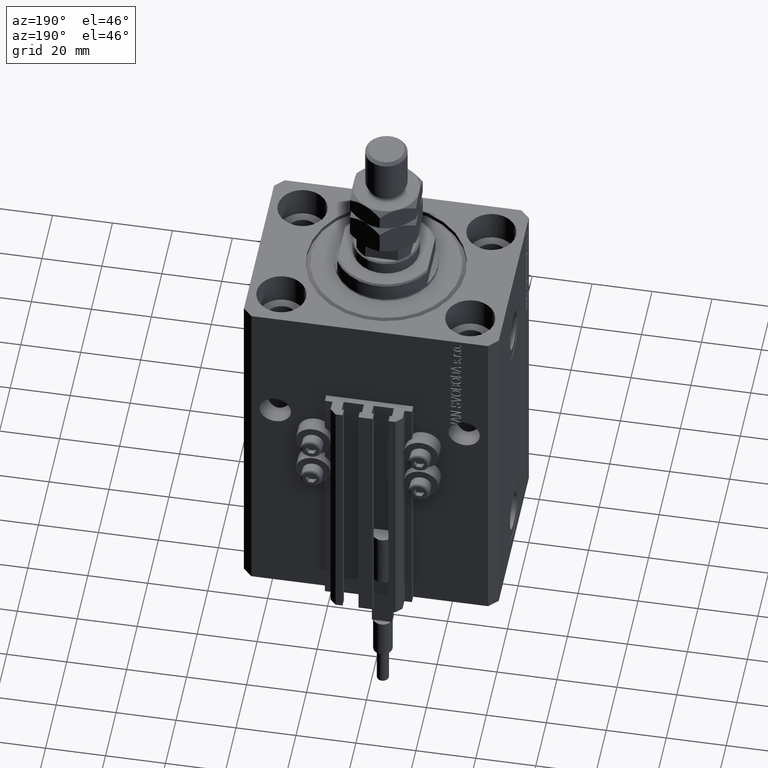
[diagram: clean part render]
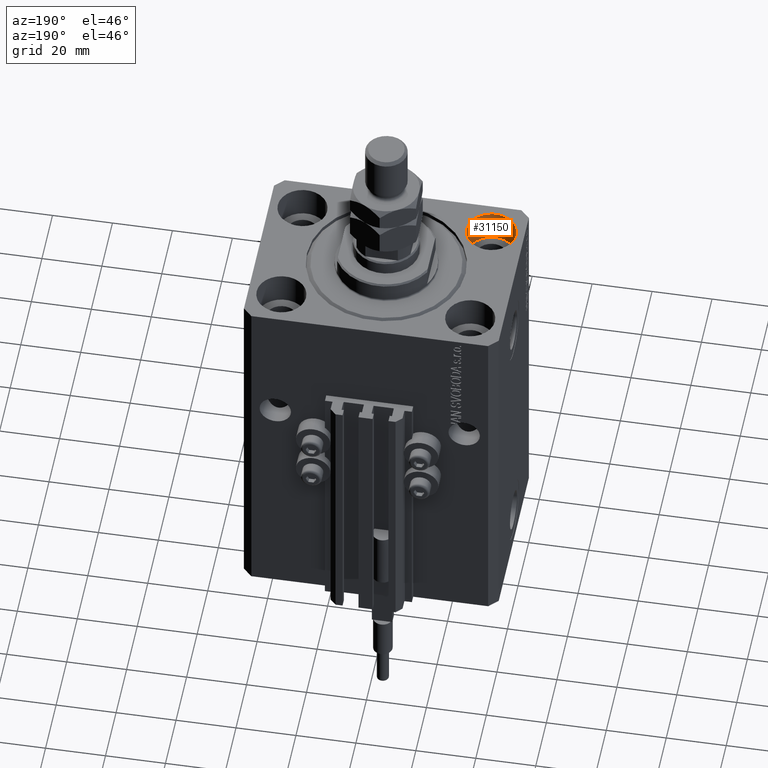
[diagram: same view with one face highlighted and labeled with its STEP entity id]
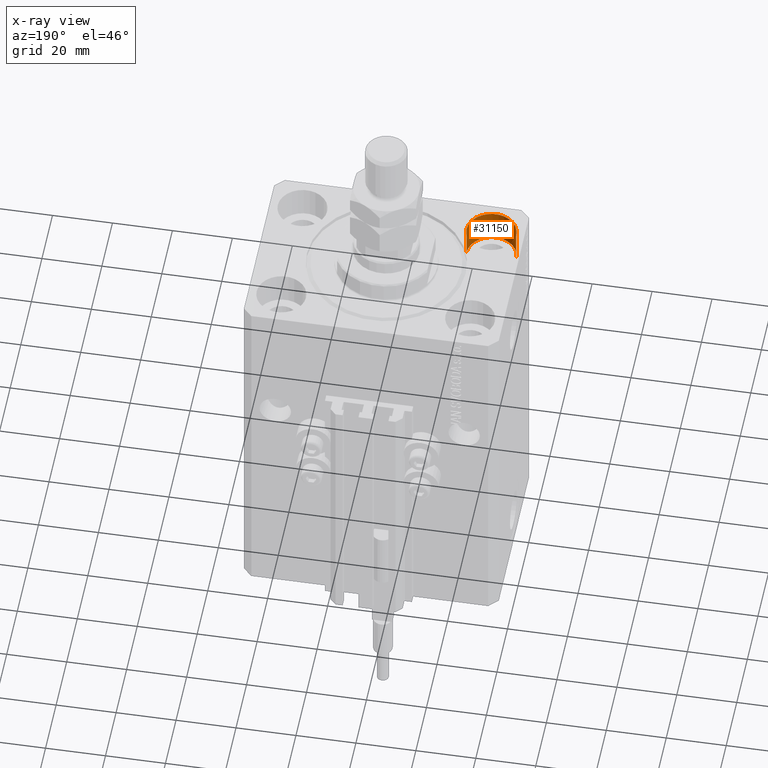
[diagram: x-ray of the same camera — body ghosted, the highlighted face saturated]
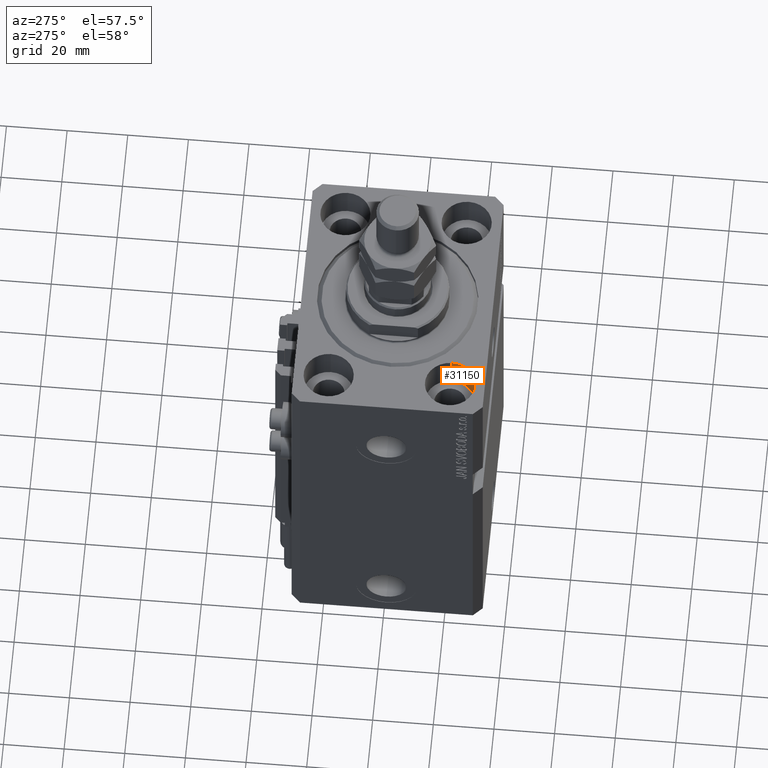
[diagram: same view with one face highlighted and labeled with its STEP entity id]
A machine part, auxiliary view. The second image highlights one B-rep face of the part: STEP entity #31150.
The next image is the same camera in x-ray: the body ghosted, the highlighted face saturated — about 0% of this face is hidden behind the body in this view.
A second angle (auxiliary view) of the same face is appended — the face is thin or edge-on in the first view.
In plain terms, the highlighted cylindrical surface (edge-blend (fillet) strip) has radius 8.25 mm, axis along (0, 0, 1).
Its self-contained STEP definition (entity closure, byte-faithful):
#64 = LINE ( 'NONE', #19758, #49057 ) ;
#1606 = CARTESIAN_POINT ( 'NONE',  ( -31.50000000000000000, -20.00000000000000000, 0.000000000000000000 ) ) ;
#1827 = EDGE_LOOP ( 'NONE', ( #43840, #28282, #48838, #40486 ) ) ;
#2921 = VERTEX_POINT ( 'NONE', #8033 ) ;
#3069 = VERTEX_POINT ( 'NONE', #26124 ) ;
#3733 = EDGE_CURVE ( 'NONE', #3069, #46570, #32826, .T. ) ;
#4209 = CIRCLE ( 'NONE', #19549, 8.250000000000000000 ) ;
#4343 = DIRECTION ( 'NONE',  ( -0.000000000000000000, -0.000000000000000000, 1.000000000000000000 ) ) ;
#8033 = CARTESIAN_POINT ( 'NONE',  ( -23.25000000000000000, -20.00000000000000000, 0.000000000000000000 ) ) ;
#9168 = DIRECTION ( 'NONE',  ( 1.000000000000000000, 0.000000000000000000, 0.000000000000000000 ) ) ;
#11740 = AXIS2_PLACEMENT_3D ( 'NONE', #15168, #23517, #30598 ) ;
#11885 = FACE_OUTER_BOUND ( 'NONE', #1827, .T. ) ;
#13619 = DIRECTION ( 'NONE',  ( -0.000000000000000000, -0.000000000000000000, 1.000000000000000000 ) ) ;
#14075 = CARTESIAN_POINT ( 'NONE',  ( -31.50000000000000000, -20.00000000000000000, -11.00000000000000000 ) ) ;
#15168 = CARTESIAN_POINT ( 'NONE',  ( -31.50000000000000000, -20.00000000000000000, -11.00000000000000000 ) ) ;
#18429 = VECTOR ( 'NONE', #13619, 1000.000000000000000 ) ;
#18619 = DIRECTION ( 'NONE',  ( 0.000000000000000000, 0.000000000000000000, 1.000000000000000000 ) ) ;
#19549 = AXIS2_PLACEMENT_3D ( 'NONE', #14075, #18619, #30243 ) ;
#19758 = CARTESIAN_POINT ( 'NONE',  ( -23.25000000000000000, -20.00000000000000000, -11.00000000000000000 ) ) ;
#20679 = CIRCLE ( 'NONE', #44082, 8.250000000000000000 ) ;
#20797 = EDGE_CURVE ( 'NONE', #3069, #41024, #4209, .T. ) ;
#23015 = CYLINDRICAL_SURFACE ( 'NONE', #11740, 8.250000000000000000 ) ;
#23517 = DIRECTION ( 'NONE',  ( -0.000000000000000000, -0.000000000000000000, 1.000000000000000000 ) ) ;
#26124 = CARTESIAN_POINT ( 'NONE',  ( -39.75000000000000000, -20.00000000000000000, -11.00000000000000000 ) ) ;
#26266 = CARTESIAN_POINT ( 'NONE',  ( -39.75000000000000000, -20.00000000000000000, 0.000000000000000000 ) ) ;
#28282 = ORIENTED_EDGE ( 'NONE', *, *, #3733, .T. ) ;
#28468 = CARTESIAN_POINT ( 'NONE',  ( -23.25000000000000000, -20.00000000000000000, -11.00000000000000000 ) ) ;
#30243 = DIRECTION ( 'NONE',  ( 1.000000000000000000, 0.000000000000000000, 0.000000000000000000 ) ) ;
#30598 = DIRECTION ( 'NONE',  ( 1.000000000000000000, 0.000000000000000000, 0.000000000000000000 ) ) ;
#31150 = ADVANCED_FACE ( 'NONE', ( #11885 ), #23015, .F. ) ;
#32674 = DIRECTION ( 'NONE',  ( 0.000000000000000000, 0.000000000000000000, 1.000000000000000000 ) ) ;
#32826 = LINE ( 'NONE', #48233, #18429 ) ;
#33095 = EDGE_CURVE ( 'NONE', #46570, #2921, #20679, .T. ) ;
#36451 = EDGE_CURVE ( 'NONE', #41024, #2921, #64, .T. ) ;
#40486 = ORIENTED_EDGE ( 'NONE', *, *, #36451, .F. ) ;
#41024 = VERTEX_POINT ( 'NONE', #28468 ) ;
#43840 = ORIENTED_EDGE ( 'NONE', *, *, #20797, .F. ) ;
#44082 = AXIS2_PLACEMENT_3D ( 'NONE', #1606, #32674, #9168 ) ;
#46570 = VERTEX_POINT ( 'NONE', #26266 ) ;
#48233 = CARTESIAN_POINT ( 'NONE',  ( -39.75000000000000000, -20.00000000000000000, -11.00000000000000000 ) ) ;
#48838 = ORIENTED_EDGE ( 'NONE', *, *, #33095, .T. ) ;
#49057 = VECTOR ( 'NONE', #4343, 1000.000000000000000 ) ;